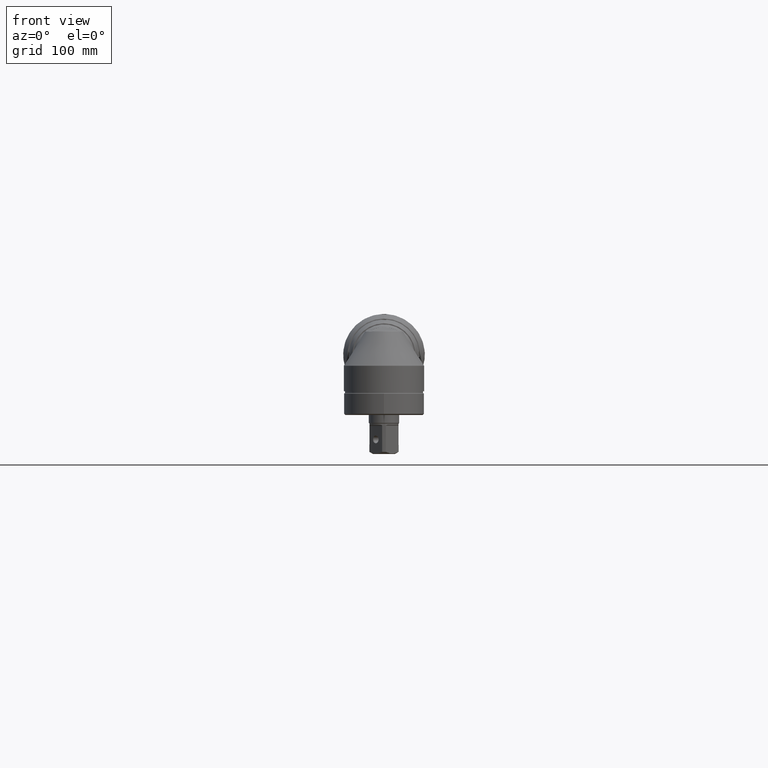
[diagram: clean part render]
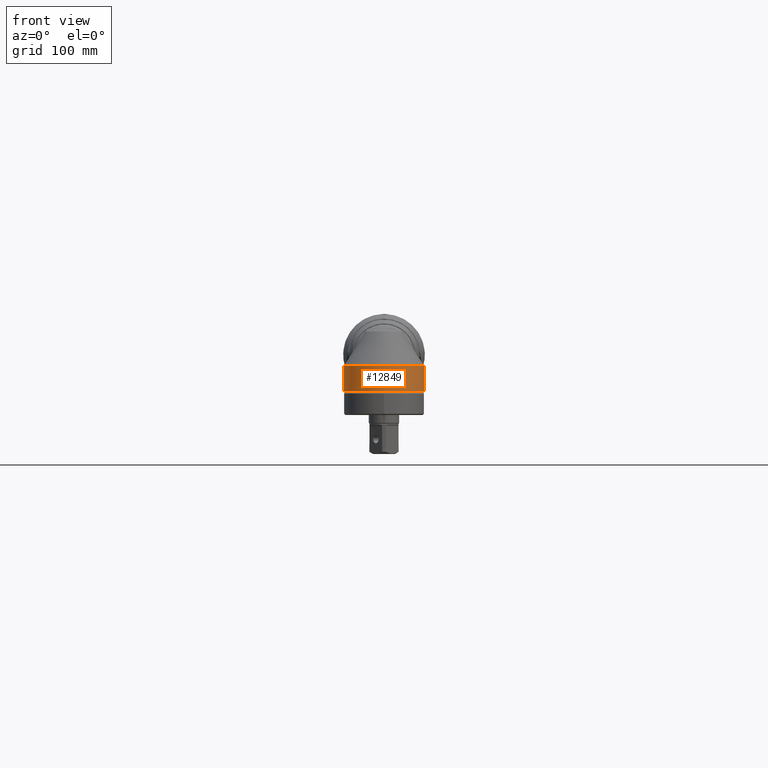
[diagram: same view with one face highlighted and labeled with its STEP entity id]
A machine part, front view. The second image highlights one B-rep face of the part: STEP entity #12849.
In plain terms, the highlighted cylindrical surface (bore or boss wall) has radius 33 mm, axis along (-0, 0, 1).
Its self-contained STEP definition (entity closure, byte-faithful):
#579=FACE_BOUND('',#3469,.T.);
#2299=CYLINDRICAL_SURFACE('',#13793,33.);
#2610=FACE_OUTER_BOUND('',#3468,.T.);
#3468=EDGE_LOOP('',(#8650,#8651,#8652,#8653));
#3469=EDGE_LOOP('',(#8654));
#4479=CIRCLE('',#13640,33.);
#4569=CIRCLE('',#13792,33.);
#5323=B_SPLINE_CURVE_WITH_KNOTS('',3,(#19696,#19697,#19698,#19699,#19700,
#19701,#19702,#19703),.UNSPECIFIED.,.F.,.F.,(4,2,2,4),(0.,0.126373381233857,
0.224367850877175,0.31792924861808),.UNSPECIFIED.);
#5345=B_SPLINE_CURVE_WITH_KNOTS('',3,(#20336,#20337,#20338,#20339,#20340,
#20341,#20342,#20343,#20344,#20345,#20346,#20347,#20348,#20349,#20350,#20351,
#20352,#20353,#20354,#20355,#20356,#20357,#20358,#20359,#20360,#20361,#20362,
#20363,#20364,#20365,#20366,#20367,#20368,#20369,#20370,#20371,#20372,#20373,
#20374,#20375,#20376,#20377,#20378),.UNSPECIFIED.,.F.,.F.,(4,3,3,3,3,3,
3,3,3,3,3,3,3,3,4),(-20.0925660503626,-19.4773043344391,-19.2945413174867,
-18.3924894561672,-18.253905986055,-17.5033848954998,-17.212116848372,-16.6916196114454,
-16.1708865157061,-15.972965633316,-15.2626963871431,-15.1296081914806,
-14.1203086979452,-14.0888650563811,-13.290613699219),.UNSPECIFIED.);
#5348=B_SPLINE_CURVE_WITH_KNOTS('',3,(#20518,#20519,#20520,#20521,#20522,
#20523,#20524,#20525,#20526,#20527),.UNSPECIFIED.,.F.,.F.,(4,2,2,2,4),(0.47898568265701,
0.485256015946104,0.618709885073932,0.742207508175637,0.88938043254428),
 .UNSPECIFIED.);
#5446=VERTEX_POINT('',#19598);
#5448=VERTEX_POINT('',#19612);
#5451=VERTEX_POINT('',#19695);
#5586=VERTEX_POINT('',#20322);
#5593=VERTEX_POINT('',#20624);
#6643=EDGE_CURVE('',#5448,#5446,#4479,.T.);
#6646=EDGE_CURVE('',#5446,#5451,#5323,.T.);
#6803=EDGE_CURVE('',#5451,#5586,#5345,.T.);
#6807=EDGE_CURVE('',#5586,#5448,#5348,.T.);
#6816=EDGE_CURVE('',#5593,#5593,#4569,.T.);
#8650=ORIENTED_EDGE('',*,*,#6803,.F.);
#8651=ORIENTED_EDGE('',*,*,#6646,.F.);
#8652=ORIENTED_EDGE('',*,*,#6643,.F.);
#8653=ORIENTED_EDGE('',*,*,#6807,.F.);
#8654=ORIENTED_EDGE('',*,*,#6816,.T.);
#12849=ADVANCED_FACE('',(#2610,#579),#2299,.T.);
#13640=AXIS2_PLACEMENT_3D('',#19625,#15403,#15404);
#13792=AXIS2_PLACEMENT_3D('',#20625,#15749,#15750);
#13793=AXIS2_PLACEMENT_3D('',#20626,#15751,#15752);
#15403=DIRECTION('center_axis',(-1.22464679914735E-16,0.,1.));
#15404=DIRECTION('ref_axis',(1.,0.,1.22464679914735E-16));
#15749=DIRECTION('center_axis',(-1.22464679914735E-16,0.,1.));
#15750=DIRECTION('ref_axis',(1.,0.,1.22464679914735E-16));
#15751=DIRECTION('center_axis',(-1.22464679914735E-16,0.,1.));
#15752=DIRECTION('ref_axis',(-1.,0.,0.));
#19598=CARTESIAN_POINT('',(24.1633576944182,22.4751450480491,-8.99999999996307));
#19612=CARTESIAN_POINT('',(-24.1633576944087,22.4751450480718,-8.99999999999048));
#19625=CARTESIAN_POINT('Origin',(1.10218211923262E-15,1.77635683940025E-14,
-9.00000000000002));
#19695=CARTESIAN_POINT('',(22.3391057901271,24.2891817996719,-7.50708577655402));
#19696=CARTESIAN_POINT('Ctrl Pts',(24.1633576944054,22.4751450480797,-9.00000000000002));
#19697=CARTESIAN_POINT('Ctrl Pts',(23.8764627374915,22.7835900191712,-9.00000000000002));
#19698=CARTESIAN_POINT('Ctrl Pts',(23.5828601066249,23.0868233237847,-8.93911869062382));
#19699=CARTESIAN_POINT('Ctrl Pts',(23.0916826614355,23.5768108895891,-8.66240430326233));
#19700=CARTESIAN_POINT('Ctrl Pts',(22.8968253015962,23.7653042360273,-8.48956333441369));
#19701=CARTESIAN_POINT('Ctrl Pts',(22.5665901076856,24.079005461509,-8.04345118880136));
#19702=CARTESIAN_POINT('Ctrl Pts',(22.4383028114267,24.1979488890225,-7.78765568710488));
#19703=CARTESIAN_POINT('Ctrl Pts',(22.3391057901271,24.2891817996719,-7.50708577655402));
#20322=CARTESIAN_POINT('',(-22.3391057901271,24.2891817996718,-7.50708577655402));
#20336=CARTESIAN_POINT('Ctrl Pts',(22.338995373871,24.2890617034119,-7.5070857586338));
#20337=CARTESIAN_POINT('Ctrl Pts',(21.8046079429871,24.7800941491529,-9.39876356749242));
#20338=CARTESIAN_POINT('Ctrl Pts',(21.0801265944782,25.4127089596778,-11.1789941259843));
#20339=CARTESIAN_POINT('Ctrl Pts',(20.1986493761164,26.0957869209668,-12.8299233043274));
#20340=CARTESIAN_POINT('Ctrl Pts',(19.9368072500207,26.298694701165,-13.3203305401424));
#20341=CARTESIAN_POINT('Ctrl Pts',(19.6606846247815,26.5063976121826,-13.7999841018674));
#20342=CARTESIAN_POINT('Ctrl Pts',(19.3711115935482,26.7164950267744,-14.2682749867861));
#20343=CARTESIAN_POINT('Ctrl Pts',(17.9418843014645,27.7534595453688,-16.5795886837457));
#20344=CARTESIAN_POINT('Ctrl Pts',(16.1841451359041,28.8485957861353,-18.6126945311088));
#20345=CARTESIAN_POINT('Ctrl Pts',(14.1287662545128,29.8221001808444,-20.3111011021139));
#20346=CARTESIAN_POINT('Ctrl Pts',(13.8129955654952,29.9716610020934,-20.5720296433254));
#20347=CARTESIAN_POINT('Ctrl Pts',(13.4903552599672,30.1182968101793,-20.8247746621611));
#20348=CARTESIAN_POINT('Ctrl Pts',(13.1608613052644,30.2614318558877,-21.0692466570239));
#20349=CARTESIAN_POINT('Ctrl Pts',(11.3764337540219,31.0366027367641,-22.3932240985332));
#20350=CARTESIAN_POINT('Ctrl Pts',(9.39181410974025,31.7098853668296,-23.4760353447264));
#20351=CARTESIAN_POINT('Ctrl Pts',(7.26137563844174,32.19303422363,-24.2370689908341));
#20352=CARTESIAN_POINT('Ctrl Pts',(6.43457854923259,32.3805383800931,-24.5324168320738));
#20353=CARTESIAN_POINT('Ctrl Pts',(5.58760807088827,32.5388239309991,-24.7797676623642));
#20354=CARTESIAN_POINT('Ctrl Pts',(4.72472111773712,32.6625168858205,-24.9734358364586));
#20355=CARTESIAN_POINT('Ctrl Pts',(3.18273846868236,32.8835567212803,-25.3195216858703));
#20356=CARTESIAN_POINT('Ctrl Pts',(1.5897642072428,32.9940496016863,-25.4940498374829));
#20357=CARTESIAN_POINT('Ctrl Pts',(1.36196328548444E-6,32.9944322909246,
-25.4943640654196));
#20358=CARTESIAN_POINT('Ctrl Pts',(-1.59048187057377,32.9948151535753,-25.4946784357459));
#20359=CARTESIAN_POINT('Ctrl Pts',(-3.18345134669474,32.8850661673819,-25.3193772610813));
#20360=CARTESIAN_POINT('Ctrl Pts',(-4.72623017022244,32.6641274522467,-24.9732371358085));
#20361=CARTESIAN_POINT('Ctrl Pts',(-5.3126114634105,32.5801527907329,-24.8416757666827));
#20362=CARTESIAN_POINT('Ctrl Pts',(-5.89178718910467,32.4801151476365,-24.685436340319));
#20363=CARTESIAN_POINT('Ctrl Pts',(-6.46255153633055,32.3656580965481,-24.5063292870669));
#20364=CARTESIAN_POINT('Ctrl Pts',(-8.51082637095579,31.9549115274442,-23.8635763336572));
#20365=CARTESIAN_POINT('Ctrl Pts',(-10.4384491845296,31.3613741329088,-22.9229408868301));
#20366=CARTESIAN_POINT('Ctrl Pts',(-12.1923194676757,30.6644468605344,-21.7542235069748));
#20367=CARTESIAN_POINT('Ctrl Pts',(-12.5209546052206,30.5338586453075,-21.5352326268791));
#20368=CARTESIAN_POINT('Ctrl Pts',(-12.8437610024442,30.3995161986516,-21.308121159626));
#20369=CARTESIAN_POINT('Ctrl Pts',(-13.1602696630968,30.2619473928088,-21.0733799609387));
#20370=CARTESIAN_POINT('Ctrl Pts',(-15.5605729304607,29.2186683448644,-19.2931757003905));
#20371=CARTESIAN_POINT('Ctrl Pts',(-17.5963037830382,27.9892990243768,-17.0718331564878));
#20372=CARTESIAN_POINT('Ctrl Pts',(-19.21945621646,26.8260470133069,-14.5086718515159));
#20373=CARTESIAN_POINT('Ctrl Pts',(-19.2700237869851,26.78980714643,-14.4288193143249));
#20374=CARTESIAN_POINT('Ctrl Pts',(-19.3201990570914,26.7536271809069,-14.3486261969909));
#20375=CARTESIAN_POINT('Ctrl Pts',(-19.3699815878682,26.7175140870882,-14.2680942452861));
#20376=CARTESIAN_POINT('Ctrl Pts',(-20.6337974431211,25.8007205886815,-12.2236510273338));
#20377=CARTESIAN_POINT('Ctrl Pts',(-21.6455706214832,24.9263363957758,-9.9615105721613));
#20378=CARTESIAN_POINT('Ctrl Pts',(-22.3390131692506,24.2890810640291,-7.50708576313698));
#20518=CARTESIAN_POINT('Ctrl Pts',(-22.3391057901271,24.2891817996718,-7.50708577655402));
#20519=CARTESIAN_POINT('Ctrl Pts',(-22.3442619686002,24.2844395890312,-7.52166956661177));
#20520=CARTESIAN_POINT('Ctrl Pts',(-22.3495001216617,24.2796189557842,-7.53619660485357));
#20521=CARTESIAN_POINT('Ctrl Pts',(-22.4680718137915,24.1704251476889,-7.85859609054523));
#20522=CARTESIAN_POINT('Ctrl Pts',(-22.6165713826355,24.0324408332102,-8.13323208289611));
#20523=CARTESIAN_POINT('Ctrl Pts',(-22.9781829746507,23.6867246120378,-8.56756053328057));
#20524=CARTESIAN_POINT('Ctrl Pts',(-23.1747668229712,23.4951210163291,-8.72136442976982));
#20525=CARTESIAN_POINT('Ctrl Pts',(-23.6400102073295,23.0277763425579,-8.95046516184687));
#20526=CARTESIAN_POINT('Ctrl Pts',(-23.904593006864,22.7533467544699,-9.00000000000003));
#20527=CARTESIAN_POINT('Ctrl Pts',(-24.1633576944054,22.4751450480797,-9.00000000000003));
#20624=CARTESIAN_POINT('',(-33.,1.77635683940025E-14,-30.));
#20625=CARTESIAN_POINT('Origin',(3.67394039744206E-15,1.77635683940025E-14,
-30.));
#20626=CARTESIAN_POINT('Origin',(2.38806125833734E-15,1.77635683940025E-14,
-19.5));